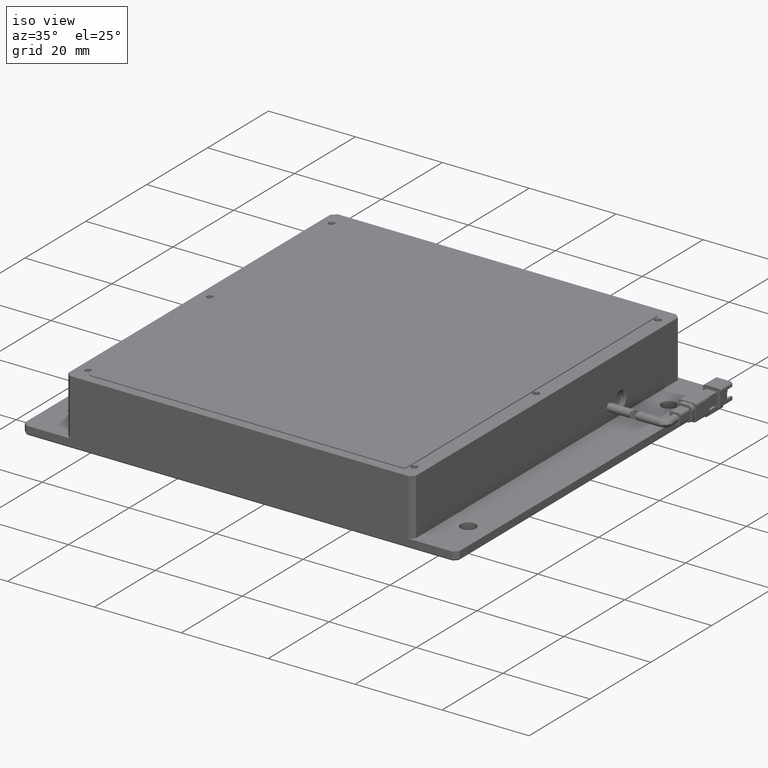
[diagram: clean part render]
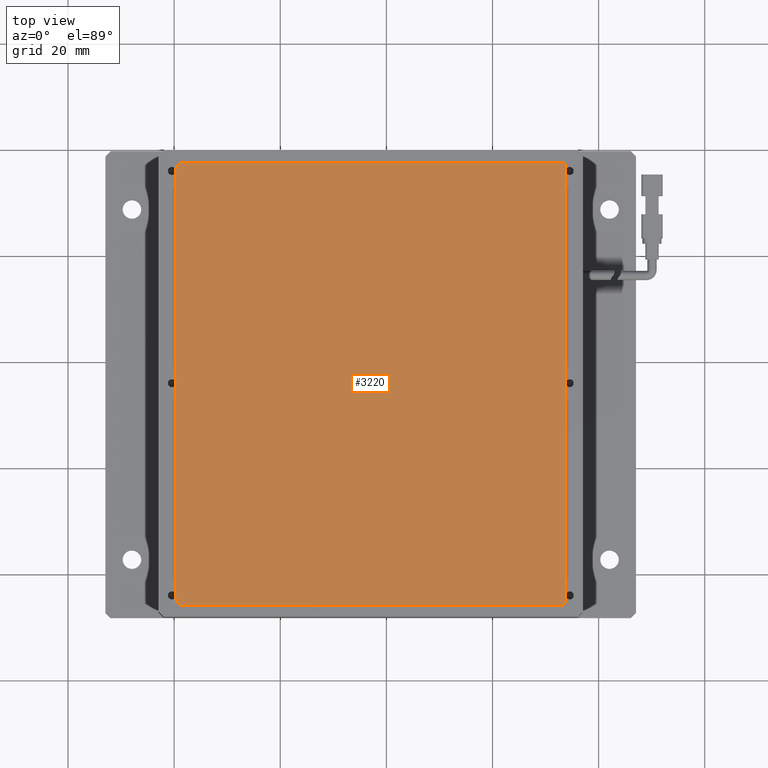
[diagram: tour spotlight — one face highlighted and labeled with its STEP entity id]
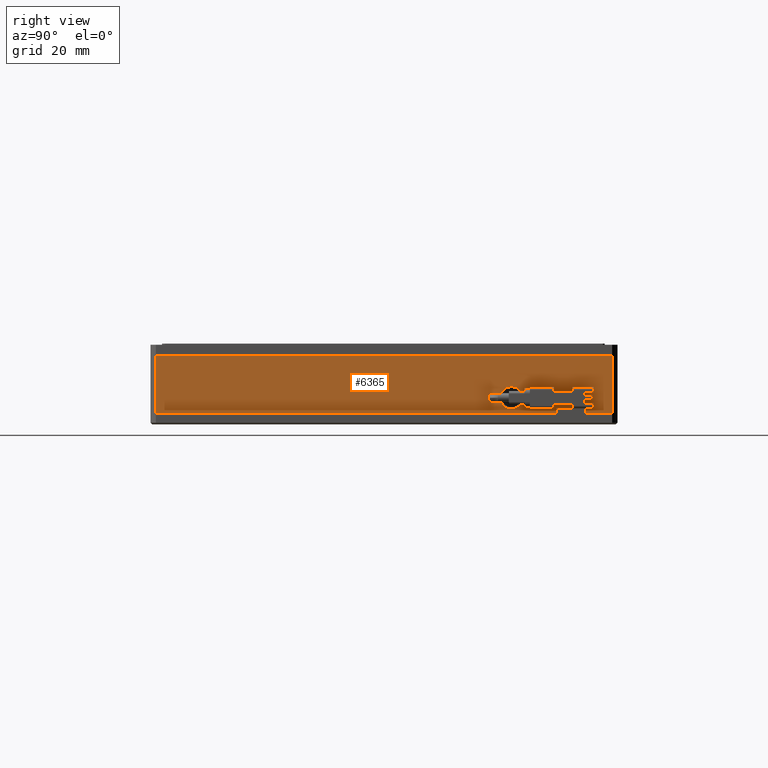
[diagram: tour spotlight — one face highlighted and labeled with its STEP entity id]
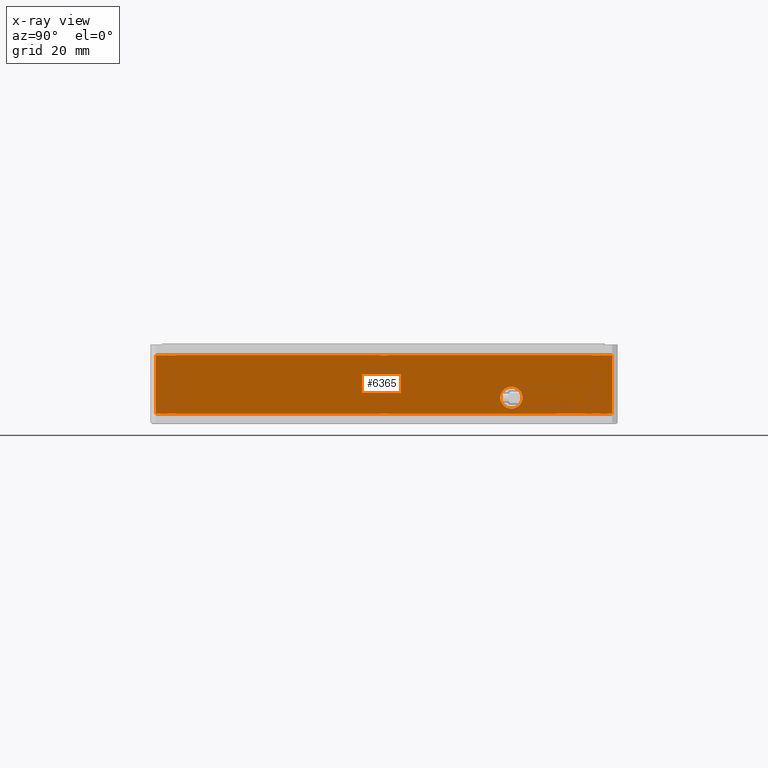
[diagram: x-ray of the same camera — body ghosted, this tour face saturated]
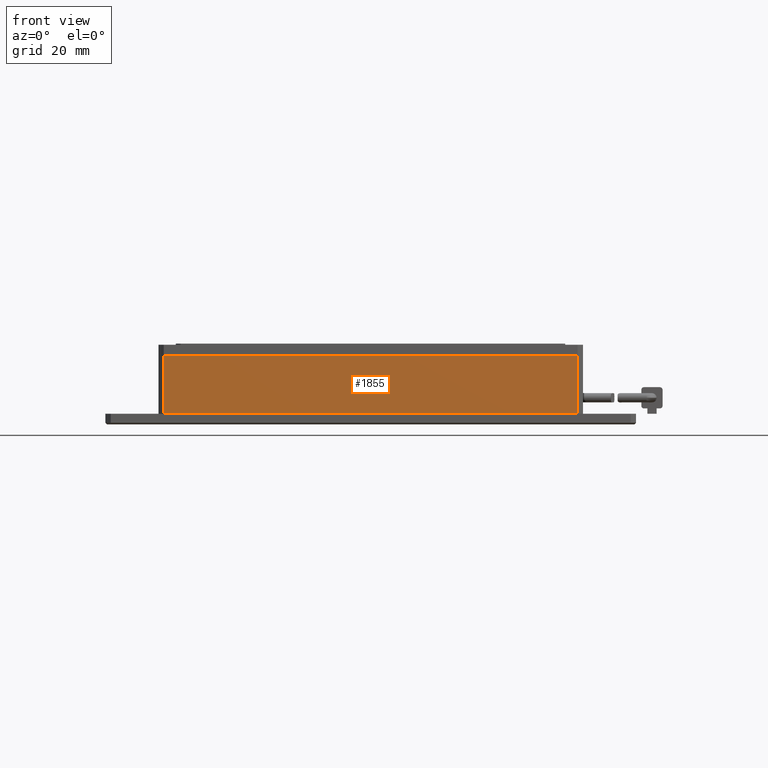
[diagram: tour spotlight — one face highlighted and labeled with its STEP entity id]
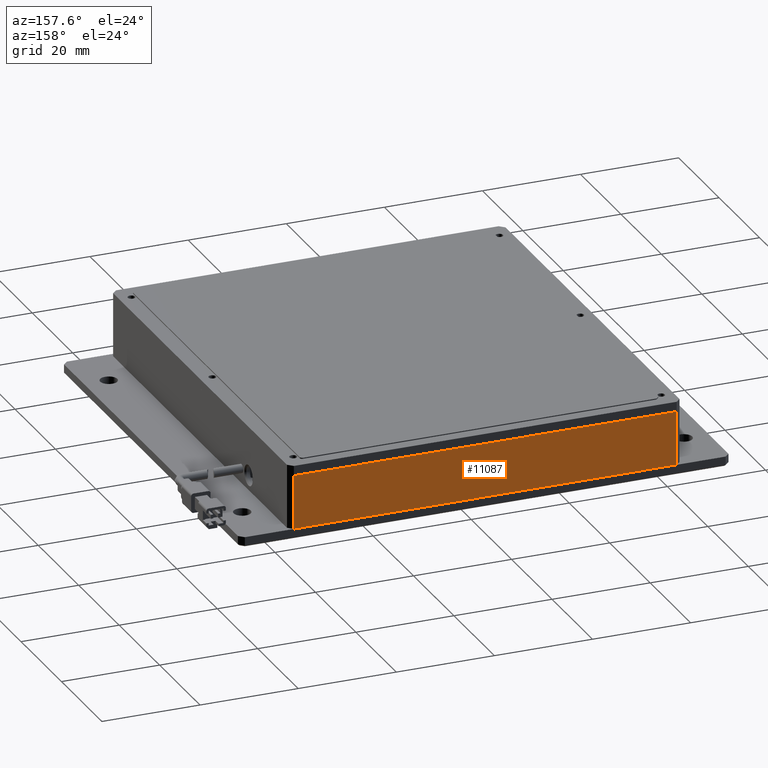
[diagram: tour spotlight — one face highlighted and labeled with its STEP entity id]
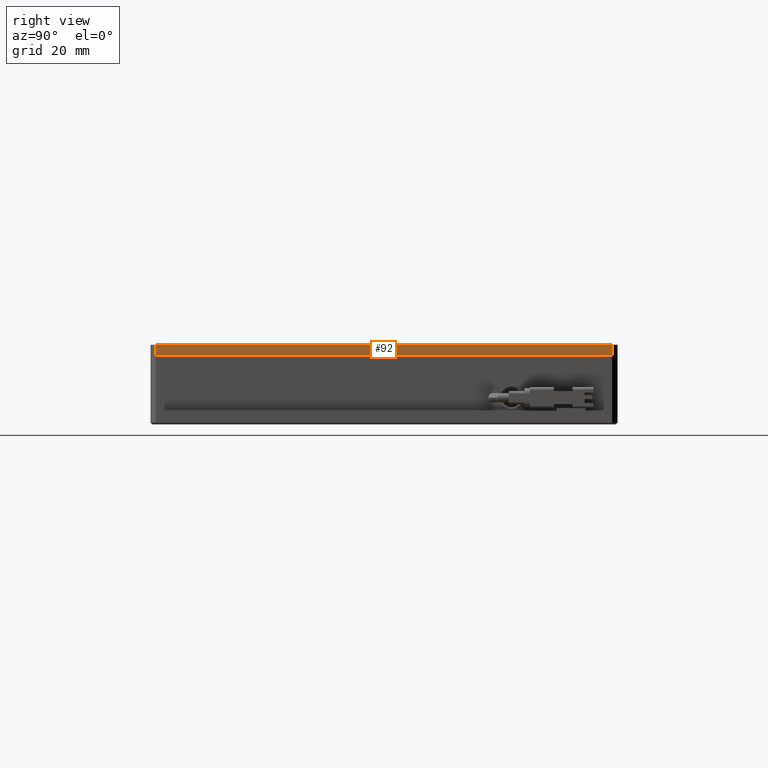
[diagram: tour spotlight — one face highlighted and labeled with its STEP entity id]
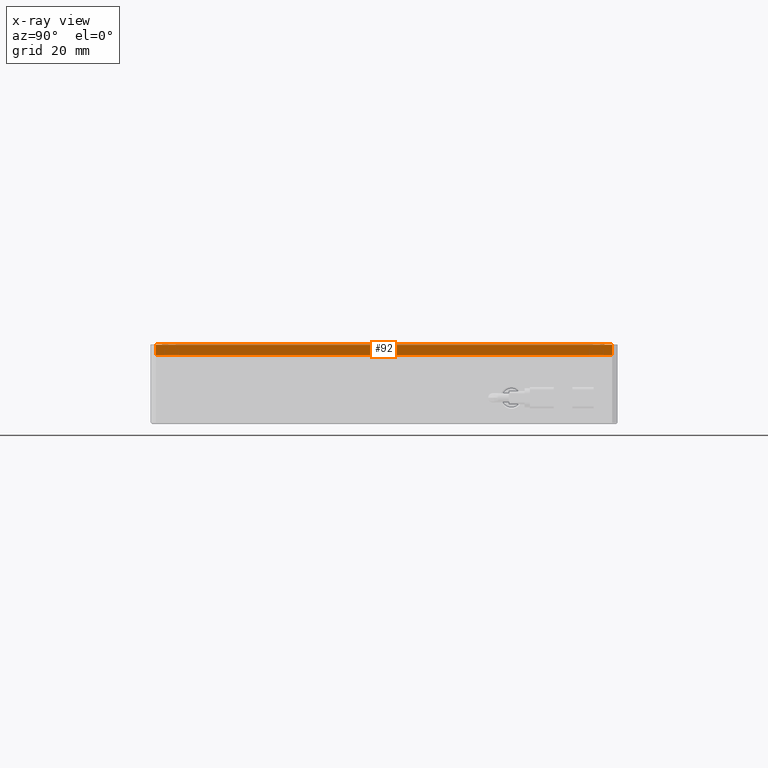
[diagram: x-ray of the same camera — body ghosted, this tour face saturated]
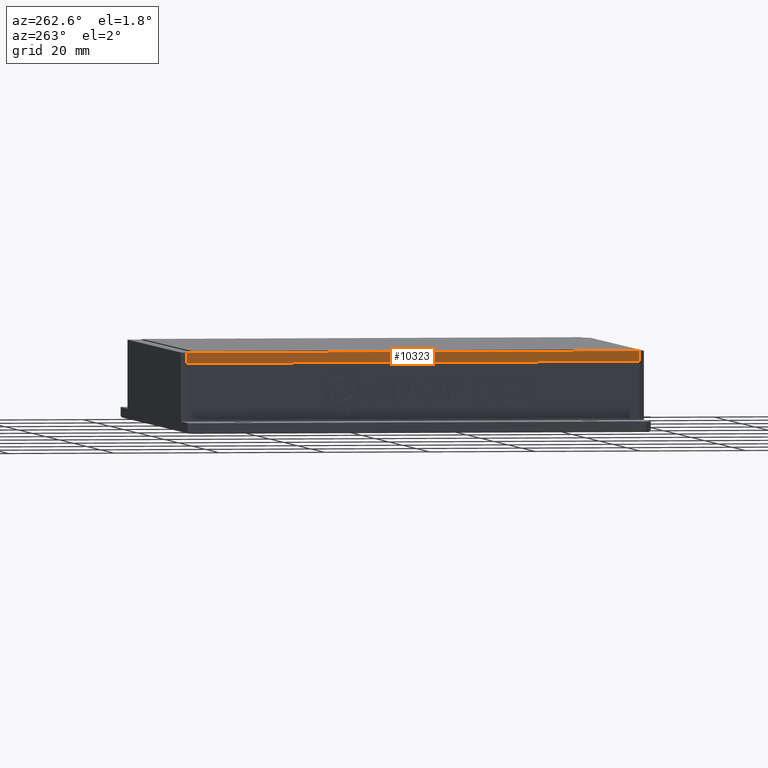
[diagram: tour spotlight — one face highlighted and labeled with its STEP entity id]
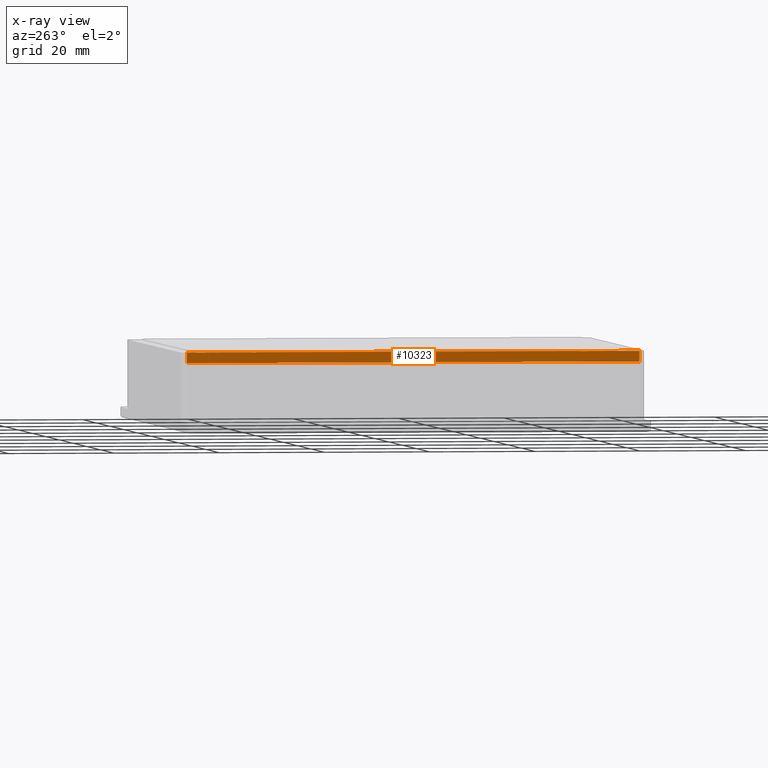
[diagram: x-ray of the same camera — body ghosted, this tour face saturated]
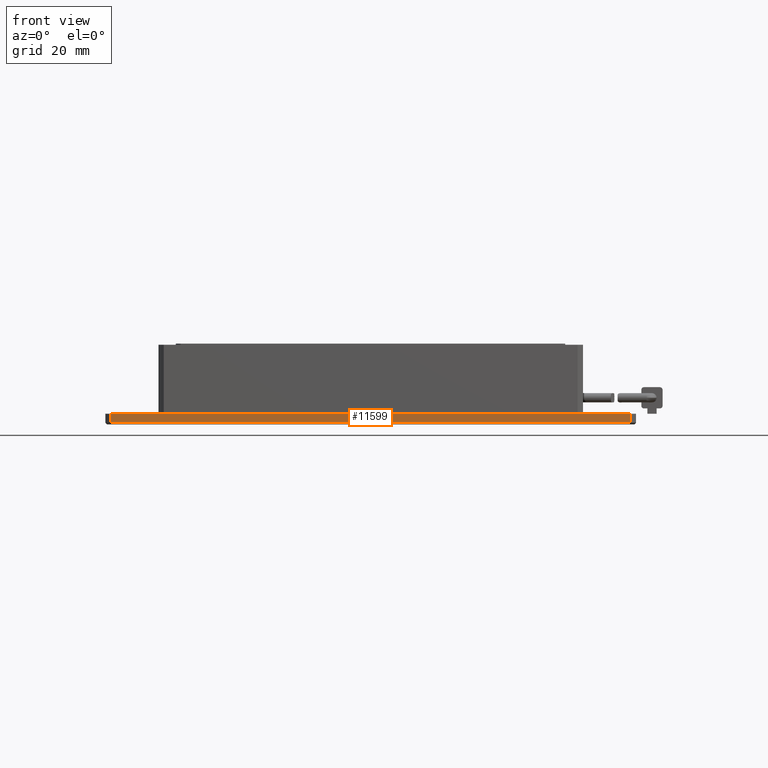
[diagram: tour spotlight — one face highlighted and labeled with its STEP entity id]
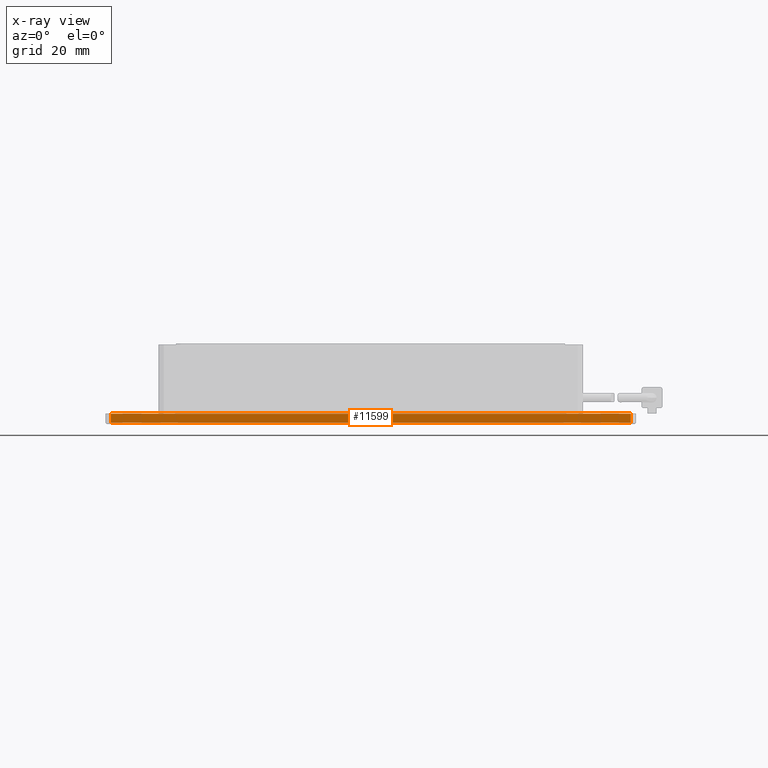
[diagram: x-ray of the same camera — body ghosted, this tour face saturated]
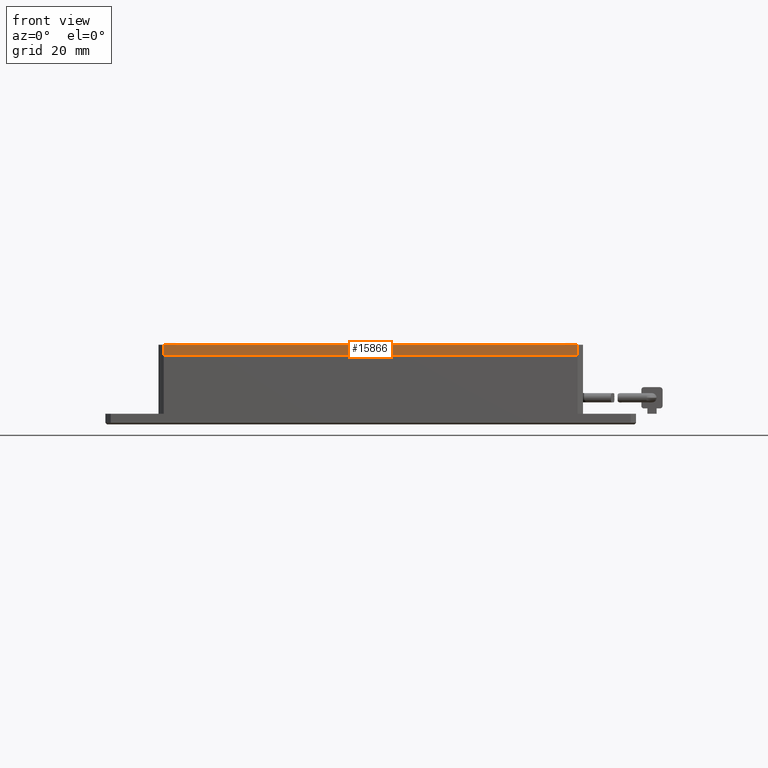
[diagram: tour spotlight — one face highlighted and labeled with its STEP entity id]
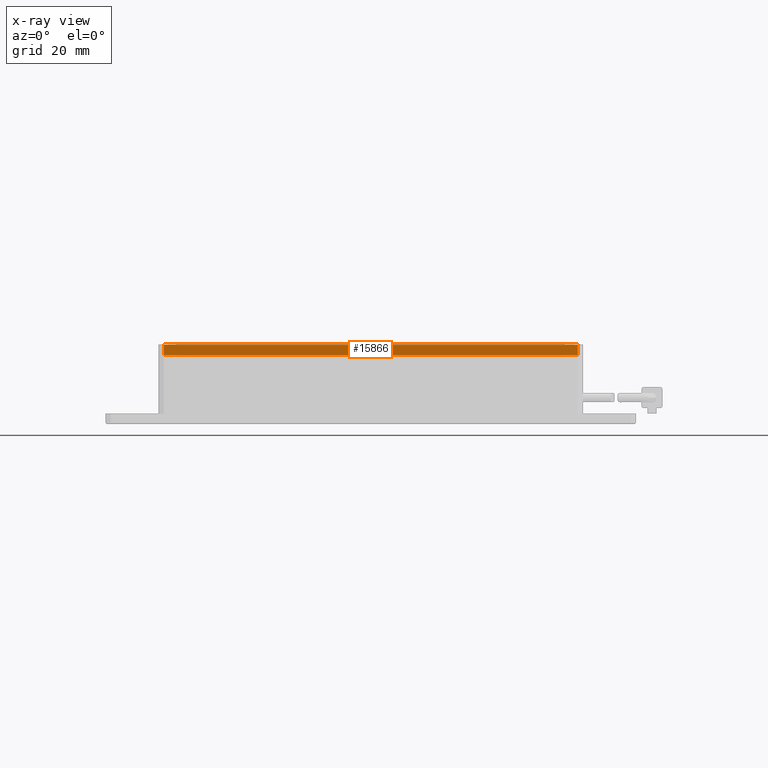
[diagram: x-ray of the same camera — body ghosted, this tour face saturated]
A machine part: a face-by-face anatomy tour. The part has 421 B-rep faces; the first image is the clean iso view, then the 8 largest visible faces are spotlighted one at a time (largest first), each with its STEP entity span.

Face 1 — top view, entity #3220. In plain terms, the highlighted planar face has unit normal (-0, 0, -1).
Definition (entity closure, byte-faithful):
#163 = DIRECTION ( 'NONE',  ( 0.0000000000000000000, 0.0000000000000000000, 1.000000000000000000 ) ) ;
#240 = AXIS2_PLACEMENT_3D ( 'NONE', #12737, #4558, #14082 ) ;
#331 = CARTESIAN_POINT ( 'NONE',  ( -18.76415559455955800, -46.03789340543249900, 13.19999999999545200 ) ) ;
#675 = ORIENTED_EDGE ( 'NONE', *, *, #1774, .T. ) ;
#860 = AXIS2_PLACEMENT_3D ( 'NONE', #1761, #1741, #1488 ) ;
#970 = EDGE_CURVE ( 'NONE', #1781, #4269, #5568, .T. ) ;
#1238 = CIRCLE ( 'NONE', #12298, 1.704916820428607800 ) ;
#1372 = ORIENTED_EDGE ( 'NONE', *, *, #10201, .T. ) ;
#1378 = LINE ( 'NONE', #6368, #8299 ) ;
#1488 = DIRECTION ( 'NONE',  ( -1.000000000000000000, 0.0000000000000000000, 0.0000000000000000000 ) ) ;
#1499 = CARTESIAN_POINT ( 'NONE',  ( -17.72795718517141900, -44.35554108450326500, 13.19999999999545200 ) ) ;
#1741 = DIRECTION ( 'NONE',  ( -0.0000000000000000000, 0.0000000000000000000, -1.000000000000000000 ) ) ;
#1748 = DIRECTION ( 'NONE',  ( 0.0000000000000000000, 1.000000000000000000, 0.0000000000000000000 ) ) ;
#1761 = CARTESIAN_POINT ( 'NONE',  ( 53.02138361069504000, -45.42049587066020400, 13.19999999999545200 ) ) ;
#1774 = EDGE_CURVE ( 'NONE', #17339, #1781, #1378, .T. ) ;
#1781 = VERTEX_POINT ( 'NONE', #15560 ) ;
#2323 = VERTEX_POINT ( 'NONE', #14765 ) ;
#2372 = CARTESIAN_POINT ( 'NONE',  ( -19.69851016245350600, 35.85280168339946300, 13.19999999999545200 ) ) ;
#2615 = DIRECTION ( 'NONE',  ( 0.0000000000000000000, 0.0000000000000000000, 1.000000000000000000 ) ) ;
#2663 = CIRCLE ( 'NONE', #6372, 1.975858414804687600 ) ;
#2877 = DIRECTION ( 'NONE',  ( 1.000000000000000000, 0.0000000000000000000, 0.0000000000000000000 ) ) ;
#2905 = VECTOR ( 'NONE', #16746, 1000.000000000000000 ) ;
#2941 = DIRECTION ( 'NONE',  ( 0.0000000000000000000, 0.0000000000000000000, 1.000000000000000000 ) ) ;
#3046 = PLANE ( 'NONE',  #860 ) ;
#3220 = ADVANCED_FACE ( 'NONE', ( #14726 ), #3046, .F. ) ;
#3865 = EDGE_LOOP ( 'NONE', ( #15355, #1372, #5149, #675, #10276, #7819, #17143, #5849, #13443, #15610 ) ) ;
#4269 = VERTEX_POINT ( 'NONE', #2372 ) ;
#4345 = CARTESIAN_POINT ( 'NONE',  ( -19.70381559997610700, -44.35554108450326500, 13.19999999999545200 ) ) ;
#4484 = VERTEX_POINT ( 'NONE', #16416 ) ;
#4558 = DIRECTION ( 'NONE',  ( 0.0000000000000000000, 0.0000000000000000000, 1.000000000000000000 ) ) ;
#5149 = ORIENTED_EDGE ( 'NONE', *, *, #14071, .T. ) ;
#5492 = VERTEX_POINT ( 'NONE', #10742 ) ;
#5567 = CARTESIAN_POINT ( 'NONE',  ( 53.67496845478625300, 36.99773376028026200, 13.19999999999545200 ) ) ;
#5568 = CIRCLE ( 'NONE', #10737, 1.704916820428607800 ) ;
#5718 = EDGE_CURVE ( 'NONE', #17500, #17340, #13058, .T. ) ;
#5849 = ORIENTED_EDGE ( 'NONE', *, *, #12963, .T. ) ;
#6152 = AXIS2_PLACEMENT_3D ( 'NONE', #11166, #2941, #12533 ) ;
#6368 = CARTESIAN_POINT ( 'NONE',  ( -18.76415559455955800, 37.37364854602209600, 13.19999999999545200 ) ) ;
#6372 = AXIS2_PLACEMENT_3D ( 'NONE', #8488, #163, #9835 ) ;
#6556 = VECTOR ( 'NONE', #12960, 1000.000000000000000 ) ;
#6741 = EDGE_CURVE ( 'NONE', #2323, #17500, #7050, .T. ) ;
#7050 = LINE ( 'NONE', #331, #2905 ) ;
#7197 = CARTESIAN_POINT ( 'NONE',  ( 53.67496845478625300, -45.42049587066020400, 13.19999999999545200 ) ) ;
#7819 = ORIENTED_EDGE ( 'NONE', *, *, #8705, .T. ) ;
#8299 = VECTOR ( 'NONE', #10691, 1000.000000000000000 ) ;
#8488 = CARTESIAN_POINT ( 'NONE',  ( -17.72795718517141900, -44.35554108450326500, 13.19999999999545200 ) ) ;
#8705 = EDGE_CURVE ( 'NONE', #4269, #4484, #1238, .T. ) ;
#9529 = VECTOR ( 'NONE', #1748, 1000.000000000000000 ) ;
#9835 = DIRECTION ( 'NONE',  ( 1.000000000000000000, 0.0000000000000000000, 0.0000000000000000000 ) ) ;
#10201 = EDGE_CURVE ( 'NONE', #17340, #12928, #16705, .T. ) ;
#10276 = ORIENTED_EDGE ( 'NONE', *, *, #970, .T. ) ;
#10409 = AXIS2_PLACEMENT_3D ( 'NONE', #1499, #11109, #2877 ) ;
#10691 = DIRECTION ( 'NONE',  ( -1.000000000000000000, -0.0000000000000000000, -0.0000000000000000000 ) ) ;
#10737 = AXIS2_PLACEMENT_3D ( 'NONE', #16337, #16011, #15952 ) ;
#10742 = CARTESIAN_POINT ( 'NONE',  ( -19.69768995799923800, -44.20007636502474200, 13.19999999999545200 ) ) ;
#10842 = CARTESIAN_POINT ( 'NONE',  ( -17.99359334202489800, 35.85280168339946300, 13.19999999999545200 ) ) ;
#11109 = DIRECTION ( 'NONE',  ( 0.0000000000000000000, 0.0000000000000000000, 1.000000000000000000 ) ) ;
#11166 = CARTESIAN_POINT ( 'NONE',  ( 53.07545545019090800, 36.74185223224468900, 13.19999999999545200 ) ) ;
#11411 = EDGE_CURVE ( 'NONE', #12570, #2323, #14980, .T. ) ;
#12222 = DIRECTION ( 'NONE',  ( -1.000000000000000000, 0.0000000000000000000, 0.0000000000000000000 ) ) ;
#12298 = AXIS2_PLACEMENT_3D ( 'NONE', #10842, #2615, #12222 ) ;
#12533 = DIRECTION ( 'NONE',  ( -1.000000000000000000, 0.0000000000000000000, 0.0000000000000000000 ) ) ;
#12570 = VERTEX_POINT ( 'NONE', #4345 ) ;
#12699 = CARTESIAN_POINT ( 'NONE',  ( 53.23584440544043900, 37.37364854602209600, 13.19999999999545200 ) ) ;
#12737 = CARTESIAN_POINT ( 'NONE',  ( 53.02138361069504000, -45.42049587066020400, 13.19999999999545200 ) ) ;
#12928 = VERTEX_POINT ( 'NONE', #5567 ) ;
#12960 = DIRECTION ( 'NONE',  ( 1.301042606982605300E-016, -1.000000000000000000, 0.0000000000000000000 ) ) ;
#12963 = EDGE_CURVE ( 'NONE', #5492, #12570, #2663, .T. ) ;
#12981 = CARTESIAN_POINT ( 'NONE',  ( 53.23584440544043900, -46.03789340543249900, 13.19999999999545200 ) ) ;
#13026 = CARTESIAN_POINT ( 'NONE',  ( -19.69768995799924800, 35.79992363497525800, 13.19999999999545200 ) ) ;
#13058 = CIRCLE ( 'NONE', #240, 0.6535848440912123100 ) ;
#13443 = ORIENTED_EDGE ( 'NONE', *, *, #11411, .T. ) ;
#13597 = CIRCLE ( 'NONE', #6152, 0.6518367886739415700 ) ;
#14029 = CARTESIAN_POINT ( 'NONE',  ( 53.67496845478625300, -45.42049587066020400, 13.19999999999545200 ) ) ;
#14071 = EDGE_CURVE ( 'NONE', #12928, #17339, #13597, .T. ) ;
#14082 = DIRECTION ( 'NONE',  ( -1.000000000000000000, 0.0000000000000000000, 0.0000000000000000000 ) ) ;
#14726 = FACE_OUTER_BOUND ( 'NONE', #3865, .T. ) ;
#14765 = CARTESIAN_POINT ( 'NONE',  ( -18.76415559455955800, -46.03789340543249900, 13.19999999999545200 ) ) ;
#14866 = EDGE_CURVE ( 'NONE', #4484, #5492, #17371, .T. ) ;
#14980 = CIRCLE ( 'NONE', #10409, 1.975858414804687600 ) ;
#15355 = ORIENTED_EDGE ( 'NONE', *, *, #5718, .T. ) ;
#15560 = CARTESIAN_POINT ( 'NONE',  ( -18.76415559455955800, 37.37364854602209600, 13.19999999999545200 ) ) ;
#15610 = ORIENTED_EDGE ( 'NONE', *, *, #6741, .T. ) ;
#15952 = DIRECTION ( 'NONE',  ( -1.000000000000000000, 0.0000000000000000000, 0.0000000000000000000 ) ) ;
#16011 = DIRECTION ( 'NONE',  ( 0.0000000000000000000, 0.0000000000000000000, 1.000000000000000000 ) ) ;
#16337 = CARTESIAN_POINT ( 'NONE',  ( -17.99359334202489800, 35.85280168339946300, 13.19999999999545200 ) ) ;
#16416 = CARTESIAN_POINT ( 'NONE',  ( -19.69768995799924800, 35.79992363497525800, 13.19999999999545200 ) ) ;
#16705 = LINE ( 'NONE', #7197, #9529 ) ;
#16746 = DIRECTION ( 'NONE',  ( 1.000000000000000000, 0.0000000000000000000, 0.0000000000000000000 ) ) ;
#17143 = ORIENTED_EDGE ( 'NONE', *, *, #14866, .T. ) ;
#17339 = VERTEX_POINT ( 'NONE', #12699 ) ;
#17340 = VERTEX_POINT ( 'NONE', #14029 ) ;
#17371 = LINE ( 'NONE', #13026, #6556 ) ;
#17500 = VERTEX_POINT ( 'NONE', #12981 ) ;

Face 2 — right view, entity #6365. An x-ray twin of the same camera follows (body ghosted, this face saturated) — the face is partly hidden behind the body. In plain terms, the highlighted planar face has unit normal (-1, 0, 0).
Definition (entity closure, byte-faithful):
#411 = VERTEX_POINT ( 'NONE', #6874 ) ;
#531 = ORIENTED_EDGE ( 'NONE', *, *, #11283, .T. ) ;
#925 = CIRCLE ( 'NONE', #3779, 2.099999999984447600 ) ;
#985 = DIRECTION ( 'NONE',  ( 1.000000000000000000, 0.0000000000000000000, 0.0000000000000000000 ) ) ;
#2158 = CARTESIAN_POINT ( 'NONE',  ( 57.05231004200075500, -48.20007636502477800, 10.99999999999545100 ) ) ;
#2408 = VERTEX_POINT ( 'NONE', #17305 ) ;
#2601 = CARTESIAN_POINT ( 'NONE',  ( 57.05231004197073500, 19.79992363497521500, 2.999999999995452500 ) ) ;
#3331 = CIRCLE ( 'NONE', #17296, 2.099999999984447600 ) ;
#3548 = DIRECTION ( 'NONE',  ( 0.0000000000000000000, 0.0000000000000000000, 1.000000000000000000 ) ) ;
#3779 = AXIS2_PLACEMENT_3D ( 'NONE', #2601, #12210, #3986 ) ;
#3986 = DIRECTION ( 'NONE',  ( 0.0000000000000000000, 0.0000000000000000000, -1.000000000000000000 ) ) ;
#5185 = DIRECTION ( 'NONE',  ( 0.0000000000000000000, 0.0000000000000000000, 1.000000000000000000 ) ) ;
#5287 = VECTOR ( 'NONE', #5185, 1000.000000000000000 ) ;
#5497 = ORIENTED_EDGE ( 'NONE', *, *, #14407, .F. ) ;
#5546 = CARTESIAN_POINT ( 'NONE',  ( 57.05231004200076900, -47.20007636502479200, 10.99999999999545100 ) ) ;
#5773 = DIRECTION ( 'NONE',  ( -0.0000000000000000000, -0.0000000000000000000, -1.000000000000000000 ) ) ;
#6335 = LINE ( 'NONE', #8612, #9930 ) ;
#6365 = ADVANCED_FACE ( 'NONE', ( #10466, #15978 ), #13072, .F. ) ;
#6609 = DIRECTION ( 'NONE',  ( -0.0000000000000000000, -1.000000000000000000, -0.0000000000000000000 ) ) ;
#6874 = CARTESIAN_POINT ( 'NONE',  ( 57.05231004197073500, 19.79992363497521500, 5.099999999979897500 ) ) ;
#6923 = VERTEX_POINT ( 'NONE', #17282 ) ;
#6954 = VECTOR ( 'NONE', #6609, 1000.000000000000000 ) ;
#7523 = EDGE_LOOP ( 'NONE', ( #5497, #12700, #17215, #531 ) ) ;
#8313 = ORIENTED_EDGE ( 'NONE', *, *, #14369, .F. ) ;
#8612 = CARTESIAN_POINT ( 'NONE',  ( 57.05231004200075500, -48.20007636502477800, -4.547577592273199800E-012 ) ) ;
#9257 = CARTESIAN_POINT ( 'NONE',  ( 57.05231004197073500, 19.79992363497521500, 2.999999999995452500 ) ) ;
#9289 = CARTESIAN_POINT ( 'NONE',  ( 57.05231004200076900, 39.79992363497522200, 10.99999999999545100 ) ) ;
#9670 = EDGE_CURVE ( 'NONE', #2408, #10969, #12123, .T. ) ;
#9930 = VECTOR ( 'NONE', #16716, 1000.000000000000000 ) ;
#10191 = EDGE_CURVE ( 'NONE', #10969, #12373, #6335, .T. ) ;
#10412 = CARTESIAN_POINT ( 'NONE',  ( 57.05231004200074100, -47.20007636502480600, -4.548228113576691100E-012 ) ) ;
#10466 = FACE_OUTER_BOUND ( 'NONE', #7523, .T. ) ;
#10540 = EDGE_LOOP ( 'NONE', ( #8313, #11634 ) ) ;
#10543 = AXIS2_PLACEMENT_3D ( 'NONE', #2158, #11759, #3548 ) ;
#10560 = LINE ( 'NONE', #9289, #6954 ) ;
#10606 = DIRECTION ( 'NONE',  ( 0.0000000000000000000, 0.0000000000000000000, -1.000000000000000000 ) ) ;
#10969 = VERTEX_POINT ( 'NONE', #11125 ) ;
#11125 = CARTESIAN_POINT ( 'NONE',  ( 57.05231004200075500, 38.79992363497521500, -4.550179677487165000E-012 ) ) ;
#11283 = EDGE_CURVE ( 'NONE', #2408, #16149, #10560, .T. ) ;
#11634 = ORIENTED_EDGE ( 'NONE', *, *, #13409, .F. ) ;
#11759 = DIRECTION ( 'NONE',  ( -1.000000000000000000, 0.0000000000000000000, 0.0000000000000000000 ) ) ;
#12123 = LINE ( 'NONE', #13896, #15269 ) ;
#12210 = DIRECTION ( 'NONE',  ( 1.000000000000000000, 0.0000000000000000000, 0.0000000000000000000 ) ) ;
#12373 = VERTEX_POINT ( 'NONE', #10412 ) ;
#12700 = ORIENTED_EDGE ( 'NONE', *, *, #10191, .F. ) ;
#13072 = PLANE ( 'NONE',  #10543 ) ;
#13409 = EDGE_CURVE ( 'NONE', #411, #6923, #925, .T. ) ;
#13896 = CARTESIAN_POINT ( 'NONE',  ( 57.05231004200075500, 38.79992363497520100, 10.99999999999545100 ) ) ;
#14369 = EDGE_CURVE ( 'NONE', #6923, #411, #3331, .T. ) ;
#14407 = EDGE_CURVE ( 'NONE', #12373, #16149, #15707, .T. ) ;
#14744 = CARTESIAN_POINT ( 'NONE',  ( 57.05231004200075500, -47.20007636502478500, 10.99999999999545100 ) ) ;
#15269 = VECTOR ( 'NONE', #5773, 1000.000000000000000 ) ;
#15707 = LINE ( 'NONE', #14744, #5287 ) ;
#15978 = FACE_BOUND ( 'NONE', #10540, .T. ) ;
#16149 = VERTEX_POINT ( 'NONE', #5546 ) ;
#16716 = DIRECTION ( 'NONE',  ( -0.0000000000000000000, -1.000000000000000000, 0.0000000000000000000 ) ) ;
#17215 = ORIENTED_EDGE ( 'NONE', *, *, #9670, .F. ) ;
#17282 = CARTESIAN_POINT ( 'NONE',  ( 57.05231004197073500, 19.79992363497521500, 0.9000000000110074400 ) ) ;
#17296 = AXIS2_PLACEMENT_3D ( 'NONE', #9257, #985, #10606 ) ;
#17305 = CARTESIAN_POINT ( 'NONE',  ( 57.05231004200076900, 38.79992363497521500, 10.99999999999545100 ) ) ;

Face 3 — front view, entity #1855. In plain terms, the highlighted planar face has unit normal (0, 1, 0).
Definition (entity closure, byte-faithful):
#668 = VERTEX_POINT ( 'NONE', #9595 ) ;
#1225 = CARTESIAN_POINT ( 'NONE',  ( -21.94768995799925900, -48.20007636502477800, 10.99999999999545100 ) ) ;
#1855 = ADVANCED_FACE ( 'NONE', ( #7216 ), #2683, .F. ) ;
#2683 = PLANE ( 'NONE',  #11409 ) ;
#2789 = LINE ( 'NONE', #13881, #6078 ) ;
#3219 = CARTESIAN_POINT ( 'NONE',  ( -22.94768995799924800, -48.20007636502477800, 10.99999999999545100 ) ) ;
#3244 = DIRECTION ( 'NONE',  ( 0.0000000000000000000, 1.000000000000000000, 0.0000000000000000000 ) ) ;
#4135 = CARTESIAN_POINT ( 'NONE',  ( 56.05231004200073400, -48.20007636502477800, -4.550179677487165000E-012 ) ) ;
#4339 = DIRECTION ( 'NONE',  ( -0.0000000000000000000, 0.0000000000000000000, -1.000000000000000000 ) ) ;
#4468 = ORIENTED_EDGE ( 'NONE', *, *, #8477, .T. ) ;
#6078 = VECTOR ( 'NONE', #4339, 1000.000000000000000 ) ;
#6479 = EDGE_CURVE ( 'NONE', #17167, #668, #16174, .T. ) ;
#6690 = ORIENTED_EDGE ( 'NONE', *, *, #13492, .F. ) ;
#7216 = FACE_OUTER_BOUND ( 'NONE', #11162, .T. ) ;
#7365 = CARTESIAN_POINT ( 'NONE',  ( 56.05231004200073400, -48.20007636502477800, 10.99999999999545100 ) ) ;
#7512 = ORIENTED_EDGE ( 'NONE', *, *, #6479, .F. ) ;
#8233 = DIRECTION ( 'NONE',  ( 0.0000000000000000000, -0.0000000000000000000, 1.000000000000000000 ) ) ;
#8477 = EDGE_CURVE ( 'NONE', #9060, #13430, #9462, .T. ) ;
#9034 = VECTOR ( 'NONE', #16943, 1000.000000000000000 ) ;
#9060 = VERTEX_POINT ( 'NONE', #7365 ) ;
#9404 = VECTOR ( 'NONE', #17653, 1000.000000000000000 ) ;
#9462 = LINE ( 'NONE', #15586, #9034 ) ;
#9595 = CARTESIAN_POINT ( 'NONE',  ( -21.94768995799925200, -48.20007636502477800, -4.548228113576691100E-012 ) ) ;
#10133 = DIRECTION ( 'NONE',  ( 0.0000000000000000000, -0.0000000000000000000, 1.000000000000000000 ) ) ;
#10609 = VECTOR ( 'NONE', #8233, 1000.000000000000000 ) ;
#11162 = EDGE_LOOP ( 'NONE', ( #6690, #7512, #13919, #4468 ) ) ;
#11409 = AXIS2_PLACEMENT_3D ( 'NONE', #3219, #3244, #10133 ) ;
#11434 = EDGE_CURVE ( 'NONE', #9060, #17167, #2789, .T. ) ;
#13430 = VERTEX_POINT ( 'NONE', #1225 ) ;
#13492 = EDGE_CURVE ( 'NONE', #668, #13430, #14196, .T. ) ;
#13504 = CARTESIAN_POINT ( 'NONE',  ( -21.94768995799924800, -48.20007636502477800, 10.99999999999545100 ) ) ;
#13881 = CARTESIAN_POINT ( 'NONE',  ( 56.05231004200073400, -48.20007636502477800, 10.99999999999545100 ) ) ;
#13919 = ORIENTED_EDGE ( 'NONE', *, *, #11434, .F. ) ;
#14196 = LINE ( 'NONE', #13504, #10609 ) ;
#15586 = CARTESIAN_POINT ( 'NONE',  ( -22.94768995799924800, -48.20007636502477800, 10.99999999999545100 ) ) ;
#16174 = LINE ( 'NONE', #16280, #9404 ) ;
#16280 = CARTESIAN_POINT ( 'NONE',  ( -22.94768995799924800, -48.20007636502477800, -4.547577592273199800E-012 ) ) ;
#16943 = DIRECTION ( 'NONE',  ( -1.000000000000000000, 0.0000000000000000000, -0.0000000000000000000 ) ) ;
#17167 = VERTEX_POINT ( 'NONE', #4135 ) ;
#17653 = DIRECTION ( 'NONE',  ( -1.000000000000000000, -0.0000000000000000000, 0.0000000000000000000 ) ) ;

Face 4 — auxiliary view, entity #11087. In plain terms, the highlighted planar face has unit normal (0, -1, 0).
Definition (entity closure, byte-faithful):
#647 = DIRECTION ( 'NONE',  ( 0.0000000000000000000, -0.0000000000000000000, -1.000000000000000000 ) ) ;
#1168 = DIRECTION ( 'NONE',  ( 1.000000000000000000, -0.0000000000000000000, 0.0000000000000000000 ) ) ;
#2151 = FACE_OUTER_BOUND ( 'NONE', #11257, .T. ) ;
#2424 = CARTESIAN_POINT ( 'NONE',  ( -21.94768995799926300, 39.79992363497522200, 10.99999999999545100 ) ) ;
#2958 = CARTESIAN_POINT ( 'NONE',  ( 56.05231004200076200, 39.79992363497522200, -4.548878634880182400E-012 ) ) ;
#3440 = VECTOR ( 'NONE', #1168, 1000.000000000000000 ) ;
#3686 = VERTEX_POINT ( 'NONE', #2958 ) ;
#3874 = DIRECTION ( 'NONE',  ( 0.0000000000000000000, -0.0000000000000000000, -1.000000000000000000 ) ) ;
#4358 = ORIENTED_EDGE ( 'NONE', *, *, #13340, .F. ) ;
#5071 = LINE ( 'NONE', #2424, #15921 ) ;
#5370 = LINE ( 'NONE', #16921, #9015 ) ;
#5524 = EDGE_CURVE ( 'NONE', #12586, #13874, #14322, .T. ) ;
#7103 = ORIENTED_EDGE ( 'NONE', *, *, #16379, .F. ) ;
#7775 = VECTOR ( 'NONE', #10729, 1000.000000000000000 ) ;
#8859 = CARTESIAN_POINT ( 'NONE',  ( -21.94768995799926300, 39.79992363497522200, -4.550179677487165000E-012 ) ) ;
#8936 = DIRECTION ( 'NONE',  ( 0.0000000000000000000, -1.000000000000000000, 0.0000000000000000000 ) ) ;
#9015 = VECTOR ( 'NONE', #12796, 1000.000000000000000 ) ;
#9182 = CARTESIAN_POINT ( 'NONE',  ( 56.05231004200073400, 39.79992363497522200, 10.99999999999545100 ) ) ;
#10224 = PLANE ( 'NONE',  #11072 ) ;
#10729 = DIRECTION ( 'NONE',  ( 1.000000000000000000, 0.0000000000000000000, 0.0000000000000000000 ) ) ;
#10838 = CARTESIAN_POINT ( 'NONE',  ( -22.94768995799924800, 39.79992363497522200, 10.99999999999545100 ) ) ;
#11072 = AXIS2_PLACEMENT_3D ( 'NONE', #17034, #8936, #647 ) ;
#11087 = ADVANCED_FACE ( 'NONE', ( #2151 ), #10224, .F. ) ;
#11257 = EDGE_LOOP ( 'NONE', ( #4358, #17809, #7103, #13615 ) ) ;
#11889 = EDGE_CURVE ( 'NONE', #16908, #3686, #14943, .T. ) ;
#12537 = CARTESIAN_POINT ( 'NONE',  ( -21.94768995799926300, 39.79992363497522200, 10.99999999999545100 ) ) ;
#12586 = VERTEX_POINT ( 'NONE', #12537 ) ;
#12796 = DIRECTION ( 'NONE',  ( -0.0000000000000000000, 0.0000000000000000000, 1.000000000000000000 ) ) ;
#13340 = EDGE_CURVE ( 'NONE', #12586, #16908, #5071, .T. ) ;
#13501 = CARTESIAN_POINT ( 'NONE',  ( -22.94768995799924800, 39.79992363497522200, -4.547577592273199800E-012 ) ) ;
#13615 = ORIENTED_EDGE ( 'NONE', *, *, #11889, .F. ) ;
#13874 = VERTEX_POINT ( 'NONE', #9182 ) ;
#14322 = LINE ( 'NONE', #10838, #3440 ) ;
#14943 = LINE ( 'NONE', #13501, #7775 ) ;
#15921 = VECTOR ( 'NONE', #3874, 1000.000000000000000 ) ;
#16379 = EDGE_CURVE ( 'NONE', #3686, #13874, #5370, .T. ) ;
#16908 = VERTEX_POINT ( 'NONE', #8859 ) ;
#16921 = CARTESIAN_POINT ( 'NONE',  ( 56.05231004200076200, 39.79992363497522200, 10.99999999999545100 ) ) ;
#17034 = CARTESIAN_POINT ( 'NONE',  ( -22.94768995799924800, 39.79992363497522200, 10.99999999999545100 ) ) ;
#17809 = ORIENTED_EDGE ( 'NONE', *, *, #5524, .T. ) ;

Face 5 — right view, entity #92. An x-ray twin of the same camera follows (body ghosted, this face saturated) — the face is partly hidden behind the body. In plain terms, the highlighted planar face has unit normal (-1, 0, 0).
Definition (entity closure, byte-faithful):
#92 = ADVANCED_FACE ( 'NONE', ( #2012 ), #16357, .F. ) ;
#821 = VECTOR ( 'NONE', #15176, 1000.000000000000000 ) ;
#1852 = DIRECTION ( 'NONE',  ( -0.0000000000000000000, -0.0000000000000000000, 1.000000000000000000 ) ) ;
#2012 = FACE_OUTER_BOUND ( 'NONE', #15434, .T. ) ;
#2325 = ORIENTED_EDGE ( 'NONE', *, *, #14898, .F. ) ;
#2481 = CARTESIAN_POINT ( 'NONE',  ( 57.05231004200072700, 39.79992363497522200, 12.99999999999545100 ) ) ;
#2498 = VERTEX_POINT ( 'NONE', #9360 ) ;
#2898 = ORIENTED_EDGE ( 'NONE', *, *, #3825, .F. ) ;
#3056 = EDGE_CURVE ( 'NONE', #3117, #12575, #11348, .T. ) ;
#3117 = VERTEX_POINT ( 'NONE', #13240 ) ;
#3731 = ORIENTED_EDGE ( 'NONE', *, *, #13330, .F. ) ;
#3825 = EDGE_CURVE ( 'NONE', #5787, #2498, #8535, .T. ) ;
#4371 = CARTESIAN_POINT ( 'NONE',  ( 57.05231004200068400, -47.20007636502477800, 10.99999999999545100 ) ) ;
#4877 = VECTOR ( 'NONE', #1852, 1000.000000000000000 ) ;
#5787 = VERTEX_POINT ( 'NONE', #5965 ) ;
#5965 = CARTESIAN_POINT ( 'NONE',  ( 57.05231004200068400, -47.20007636502477800, 10.99999999999545100 ) ) ;
#7642 = CARTESIAN_POINT ( 'NONE',  ( 57.05231004200068400, -48.20007636502477800, 10.99999999999545100 ) ) ;
#8535 = LINE ( 'NONE', #4371, #4877 ) ;
#9360 = CARTESIAN_POINT ( 'NONE',  ( 57.05231004200068400, -47.20007636502477800, 12.99999999999545100 ) ) ;
#9734 = VECTOR ( 'NONE', #11970, 1000.000000000000000 ) ;
#11348 = LINE ( 'NONE', #14537, #821 ) ;
#11898 = VECTOR ( 'NONE', #13442, 1000.000000000000000 ) ;
#11970 = DIRECTION ( 'NONE',  ( -6.017913440297724000E-016, -1.000000000000000000, -0.0000000000000000000 ) ) ;
#12575 = VERTEX_POINT ( 'NONE', #13885 ) ;
#13240 = CARTESIAN_POINT ( 'NONE',  ( 57.05231004200074100, 38.79992363497521500, 12.99999999999545100 ) ) ;
#13330 = EDGE_CURVE ( 'NONE', #2498, #3117, #15473, .T. ) ;
#13341 = LINE ( 'NONE', #7642, #9734 ) ;
#13442 = DIRECTION ( 'NONE',  ( 4.440892098500626200E-016, 1.000000000000000000, 0.0000000000000000000 ) ) ;
#13885 = CARTESIAN_POINT ( 'NONE',  ( 57.05231004200074100, 38.79992363497521500, 10.99999999999545100 ) ) ;
#14537 = CARTESIAN_POINT ( 'NONE',  ( 57.05231004200074100, 38.79992363497520100, 10.99999999999545100 ) ) ;
#14898 = EDGE_CURVE ( 'NONE', #12575, #5787, #13341, .T. ) ;
#15176 = DIRECTION ( 'NONE',  ( 0.0000000000000000000, 0.0000000000000000000, -1.000000000000000000 ) ) ;
#15434 = EDGE_LOOP ( 'NONE', ( #16118, #3731, #2898, #2325 ) ) ;
#15473 = LINE ( 'NONE', #2481, #11898 ) ;
#16118 = ORIENTED_EDGE ( 'NONE', *, *, #3056, .F. ) ;
#16357 = PLANE ( 'NONE',  #17288 ) ;
#17288 = AXIS2_PLACEMENT_3D ( 'NONE', #17636, #17655, #17699 ) ;
#17636 = CARTESIAN_POINT ( 'NONE',  ( 57.05231004200068400, -48.20007636502477800, 10.99999999999545100 ) ) ;
#17655 = DIRECTION ( 'NONE',  ( -1.000000000000000000, 6.017913440297724000E-016, 0.0000000000000000000 ) ) ;
#17699 = DIRECTION ( 'NONE',  ( 6.017913440297724000E-016, 1.000000000000000000, 0.0000000000000000000 ) ) ;

Face 6 — auxiliary view, entity #10323. An x-ray twin of the same camera follows (body ghosted, this face saturated) — the face is partly hidden behind the body. In plain terms, the highlighted planar face has unit normal (1, -0, -0).
Definition (entity closure, byte-faithful):
#191 = CARTESIAN_POINT ( 'NONE',  ( -22.94768995799926300, 38.79992363497525800, 12.99999999999545100 ) ) ;
#575 = VECTOR ( 'NONE', #2485, 1000.000000000000000 ) ;
#623 = CARTESIAN_POINT ( 'NONE',  ( -22.94768995799933400, -48.20007636502474200, 10.99999999999545100 ) ) ;
#878 = CARTESIAN_POINT ( 'NONE',  ( -22.94768995799933400, -48.20007636502474200, 10.99999999999545100 ) ) ;
#1916 = VERTEX_POINT ( 'NONE', #4758 ) ;
#2016 = DIRECTION ( 'NONE',  ( -7.594934782094821800E-016, -1.000000000000000000, 0.0000000000000000000 ) ) ;
#2097 = VERTEX_POINT ( 'NONE', #9620 ) ;
#2485 = DIRECTION ( 'NONE',  ( -0.0000000000000000000, -0.0000000000000000000, 1.000000000000000000 ) ) ;
#2960 = VECTOR ( 'NONE', #10320, 1000.000000000000000 ) ;
#2992 = LINE ( 'NONE', #3343, #8178 ) ;
#3343 = CARTESIAN_POINT ( 'NONE',  ( -22.94768995799933400, -47.20007636502472800, 10.99999999999545100 ) ) ;
#3506 = ORIENTED_EDGE ( 'NONE', *, *, #5795, .F. ) ;
#3552 = VERTEX_POINT ( 'NONE', #191 ) ;
#4276 = LINE ( 'NONE', #14749, #575 ) ;
#4758 = CARTESIAN_POINT ( 'NONE',  ( -22.94768995799931900, -47.20007636502475600, 12.99999999999545100 ) ) ;
#5040 = CARTESIAN_POINT ( 'NONE',  ( -22.94768995799926300, 39.79992363497525800, 12.99999999999545100 ) ) ;
#5795 = EDGE_CURVE ( 'NONE', #1916, #10092, #2992, .T. ) ;
#6436 = DIRECTION ( 'NONE',  ( -4.440892098500626200E-016, -1.000000000000000000, -0.0000000000000000000 ) ) ;
#6646 = ORIENTED_EDGE ( 'NONE', *, *, #11196, .F. ) ;
#6797 = ORIENTED_EDGE ( 'NONE', *, *, #8591, .F. ) ;
#7490 = PLANE ( 'NONE',  #15852 ) ;
#7622 = EDGE_LOOP ( 'NONE', ( #13250, #6797, #3506, #6646 ) ) ;
#8178 = VECTOR ( 'NONE', #12912, 1000.000000000000000 ) ;
#8591 = EDGE_CURVE ( 'NONE', #10092, #2097, #17048, .T. ) ;
#9514 = LINE ( 'NONE', #5040, #16275 ) ;
#9620 = CARTESIAN_POINT ( 'NONE',  ( -22.94768995799926300, 38.79992363497525800, 10.99999999999545100 ) ) ;
#10092 = VERTEX_POINT ( 'NONE', #17748 ) ;
#10264 = DIRECTION ( 'NONE',  ( 1.000000000000000000, -7.594934782094821800E-016, -0.0000000000000000000 ) ) ;
#10320 = DIRECTION ( 'NONE',  ( 7.594934782094821800E-016, 1.000000000000000000, -0.0000000000000000000 ) ) ;
#10323 = ADVANCED_FACE ( 'NONE', ( #11002 ), #7490, .F. ) ;
#11002 = FACE_OUTER_BOUND ( 'NONE', #7622, .T. ) ;
#11196 = EDGE_CURVE ( 'NONE', #3552, #1916, #9514, .T. ) ;
#12912 = DIRECTION ( 'NONE',  ( 0.0000000000000000000, 0.0000000000000000000, -1.000000000000000000 ) ) ;
#13250 = ORIENTED_EDGE ( 'NONE', *, *, #16032, .F. ) ;
#14749 = CARTESIAN_POINT ( 'NONE',  ( -22.94768995799926300, 38.79992363497524400, 10.99999999999545100 ) ) ;
#15852 = AXIS2_PLACEMENT_3D ( 'NONE', #623, #10264, #2016 ) ;
#16032 = EDGE_CURVE ( 'NONE', #2097, #3552, #4276, .T. ) ;
#16275 = VECTOR ( 'NONE', #6436, 1000.000000000000000 ) ;
#17048 = LINE ( 'NONE', #878, #2960 ) ;
#17748 = CARTESIAN_POINT ( 'NONE',  ( -22.94768995799933400, -47.20007636502474900, 10.99999999999545100 ) ) ;

Face 7 — front view, entity #11599. An x-ray twin of the same camera follows (body ghosted, this face saturated) — the face is partly hidden behind the body. In plain terms, the highlighted planar face has unit normal (0, 1, 0).
Definition (entity closure, byte-faithful):
#282 = DIRECTION ( 'NONE',  ( -1.000000000000000000, -0.0000000000000000000, 0.0000000000000000000 ) ) ;
#522 = CARTESIAN_POINT ( 'NONE',  ( 66.05231004200071300, -48.20007636502478500, -4.547577592273199800E-012 ) ) ;
#964 = VERTEX_POINT ( 'NONE', #16775 ) ;
#1534 = VERTEX_POINT ( 'NONE', #14886 ) ;
#1671 = LINE ( 'NONE', #522, #8572 ) ;
#1937 = DIRECTION ( 'NONE',  ( -0.0000000000000000000, 0.0000000000000000000, -1.000000000000000000 ) ) ;
#2613 = VERTEX_POINT ( 'NONE', #15140 ) ;
#2931 = VECTOR ( 'NONE', #282, 1000.000000000000000 ) ;
#3036 = LINE ( 'NONE', #10413, #6746 ) ;
#5997 = PLANE ( 'NONE',  #14601 ) ;
#6715 = FACE_OUTER_BOUND ( 'NONE', #15966, .T. ) ;
#6746 = VECTOR ( 'NONE', #9066, 1000.000000000000000 ) ;
#7042 = DIRECTION ( 'NONE',  ( -1.000000000000000000, 0.0000000000000000000, -0.0000000000000000000 ) ) ;
#7493 = DIRECTION ( 'NONE',  ( 0.0000000000000000000, 1.000000000000000000, 0.0000000000000000000 ) ) ;
#8572 = VECTOR ( 'NONE', #1937, 1000.000000000000000 ) ;
#9066 = DIRECTION ( 'NONE',  ( -0.0000000000000000000, 0.0000000000000000000, -1.000000000000000000 ) ) ;
#9135 = VERTEX_POINT ( 'NONE', #15634 ) ;
#9654 = CARTESIAN_POINT ( 'NONE',  ( -32.94768995799925900, -48.20007636502478500, -4.547577592273199800E-012 ) ) ;
#10413 = CARTESIAN_POINT ( 'NONE',  ( -31.94768995799927300, -48.20007636502478500, -4.547577592273199800E-012 ) ) ;
#11153 = EDGE_CURVE ( 'NONE', #9135, #964, #3036, .T. ) ;
#11599 = ADVANCED_FACE ( 'NONE', ( #6715 ), #5997, .F. ) ;
#12554 = ORIENTED_EDGE ( 'NONE', *, *, #13576, .T. ) ;
#12904 = ORIENTED_EDGE ( 'NONE', *, *, #16392, .F. ) ;
#13357 = LINE ( 'NONE', #9654, #16529 ) ;
#13576 = EDGE_CURVE ( 'NONE', #1534, #9135, #13357, .T. ) ;
#14157 = ORIENTED_EDGE ( 'NONE', *, *, #11153, .T. ) ;
#14601 = AXIS2_PLACEMENT_3D ( 'NONE', #15588, #7493, #16945 ) ;
#14746 = ORIENTED_EDGE ( 'NONE', *, *, #17318, .F. ) ;
#14886 = CARTESIAN_POINT ( 'NONE',  ( 66.05231004200074100, -48.20007636502478500, -4.547577592273199800E-012 ) ) ;
#15140 = CARTESIAN_POINT ( 'NONE',  ( 66.05231004200074100, -48.20007636502478500, -1.700000000004553000 ) ) ;
#15588 = CARTESIAN_POINT ( 'NONE',  ( -32.94768995799925900, -48.20007636502478500, -4.547577592273199800E-012 ) ) ;
#15634 = CARTESIAN_POINT ( 'NONE',  ( -31.94768995799927300, -48.20007636502478500, -4.547577592273199800E-012 ) ) ;
#15966 = EDGE_LOOP ( 'NONE', ( #14746, #12904, #12554, #14157 ) ) ;
#16392 = EDGE_CURVE ( 'NONE', #1534, #2613, #1671, .T. ) ;
#16529 = VECTOR ( 'NONE', #7042, 1000.000000000000000 ) ;
#16702 = CARTESIAN_POINT ( 'NONE',  ( -32.94768995799925900, -48.20007636502478500, -1.700000000004553000 ) ) ;
#16775 = CARTESIAN_POINT ( 'NONE',  ( -31.94768995799927300, -48.20007636502478500, -1.700000000004552100 ) ) ;
#16945 = DIRECTION ( 'NONE',  ( 0.0000000000000000000, -0.0000000000000000000, 1.000000000000000000 ) ) ;
#17318 = EDGE_CURVE ( 'NONE', #2613, #964, #17459, .T. ) ;
#17459 = LINE ( 'NONE', #16702, #2931 ) ;

Face 8 — front view, entity #15866. An x-ray twin of the same camera follows (body ghosted, this face saturated) — the face is partly hidden behind the body. In plain terms, the highlighted planar face has unit normal (0, 1, 0).
Definition (entity closure, byte-faithful):
#598 = VERTEX_POINT ( 'NONE', #14443 ) ;
#874 = EDGE_CURVE ( 'NONE', #6295, #8021, #16814, .T. ) ;
#1127 = VECTOR ( 'NONE', #15414, 1000.000000000000000 ) ;
#1402 = ORIENTED_EDGE ( 'NONE', *, *, #1978, .F. ) ;
#1407 = DIRECTION ( 'NONE',  ( 1.000000000000000000, -4.440892098500626200E-016, 0.0000000000000000000 ) ) ;
#1978 = EDGE_CURVE ( 'NONE', #598, #6295, #7880, .T. ) ;
#2548 = FACE_OUTER_BOUND ( 'NONE', #6531, .T. ) ;
#3472 = PLANE ( 'NONE',  #15900 ) ;
#4052 = CARTESIAN_POINT ( 'NONE',  ( 57.05231004200069800, -48.20007636502477800, 12.99999999999545100 ) ) ;
#4088 = ORIENTED_EDGE ( 'NONE', *, *, #10238, .F. ) ;
#4941 = DIRECTION ( 'NONE',  ( 4.440892098500626200E-016, 1.000000000000000000, 0.0000000000000000000 ) ) ;
#5035 = ORIENTED_EDGE ( 'NONE', *, *, #6540, .F. ) ;
#5174 = CARTESIAN_POINT ( 'NONE',  ( 56.05231004200067000, -48.20007636502477800, 12.99999999999545100 ) ) ;
#5257 = ORIENTED_EDGE ( 'NONE', *, *, #874, .F. ) ;
#6295 = VERTEX_POINT ( 'NONE', #14224 ) ;
#6434 = VECTOR ( 'NONE', #6991, 1000.000000000000000 ) ;
#6531 = EDGE_LOOP ( 'NONE', ( #5257, #1402, #4088, #5035 ) ) ;
#6540 = EDGE_CURVE ( 'NONE', #8021, #14915, #14460, .T. ) ;
#6991 = DIRECTION ( 'NONE',  ( -0.0000000000000000000, -0.0000000000000000000, 1.000000000000000000 ) ) ;
#7661 = CARTESIAN_POINT ( 'NONE',  ( 57.05231004200068400, -48.20007636502477800, 10.99999999999545100 ) ) ;
#7682 = DIRECTION ( 'NONE',  ( -1.000000000000000000, 4.440892098500626200E-016, 0.0000000000000000000 ) ) ;
#7794 = CARTESIAN_POINT ( 'NONE',  ( -21.94768995799933400, -48.20007636502474200, 10.99999999999545100 ) ) ;
#7880 = LINE ( 'NONE', #7661, #15052 ) ;
#8021 = VERTEX_POINT ( 'NONE', #10582 ) ;
#10238 = EDGE_CURVE ( 'NONE', #14915, #598, #11647, .T. ) ;
#10582 = CARTESIAN_POINT ( 'NONE',  ( -21.94768995799933400, -48.20007636502474200, 12.99999999999545100 ) ) ;
#10868 = VECTOR ( 'NONE', #1407, 1000.000000000000000 ) ;
#11647 = LINE ( 'NONE', #12760, #1127 ) ;
#12760 = CARTESIAN_POINT ( 'NONE',  ( 56.05231004200066300, -48.20007636502477800, 10.99999999999545100 ) ) ;
#13113 = CARTESIAN_POINT ( 'NONE',  ( 57.05231004200068400, -48.20007636502477800, 10.99999999999545100 ) ) ;
#14224 = CARTESIAN_POINT ( 'NONE',  ( -21.94768995799933400, -48.20007636502474200, 10.99999999999545100 ) ) ;
#14443 = CARTESIAN_POINT ( 'NONE',  ( 56.05231004200067700, -48.20007636502477800, 10.99999999999545100 ) ) ;
#14447 = DIRECTION ( 'NONE',  ( 0.0000000000000000000, 0.0000000000000000000, -1.000000000000000000 ) ) ;
#14460 = LINE ( 'NONE', #4052, #10868 ) ;
#14915 = VERTEX_POINT ( 'NONE', #5174 ) ;
#15052 = VECTOR ( 'NONE', #7682, 1000.000000000000000 ) ;
#15414 = DIRECTION ( 'NONE',  ( 0.0000000000000000000, 0.0000000000000000000, -1.000000000000000000 ) ) ;
#15866 = ADVANCED_FACE ( 'NONE', ( #2548 ), #3472, .F. ) ;
#15900 = AXIS2_PLACEMENT_3D ( 'NONE', #13113, #4941, #14447 ) ;
#16814 = LINE ( 'NONE', #7794, #6434 ) ;